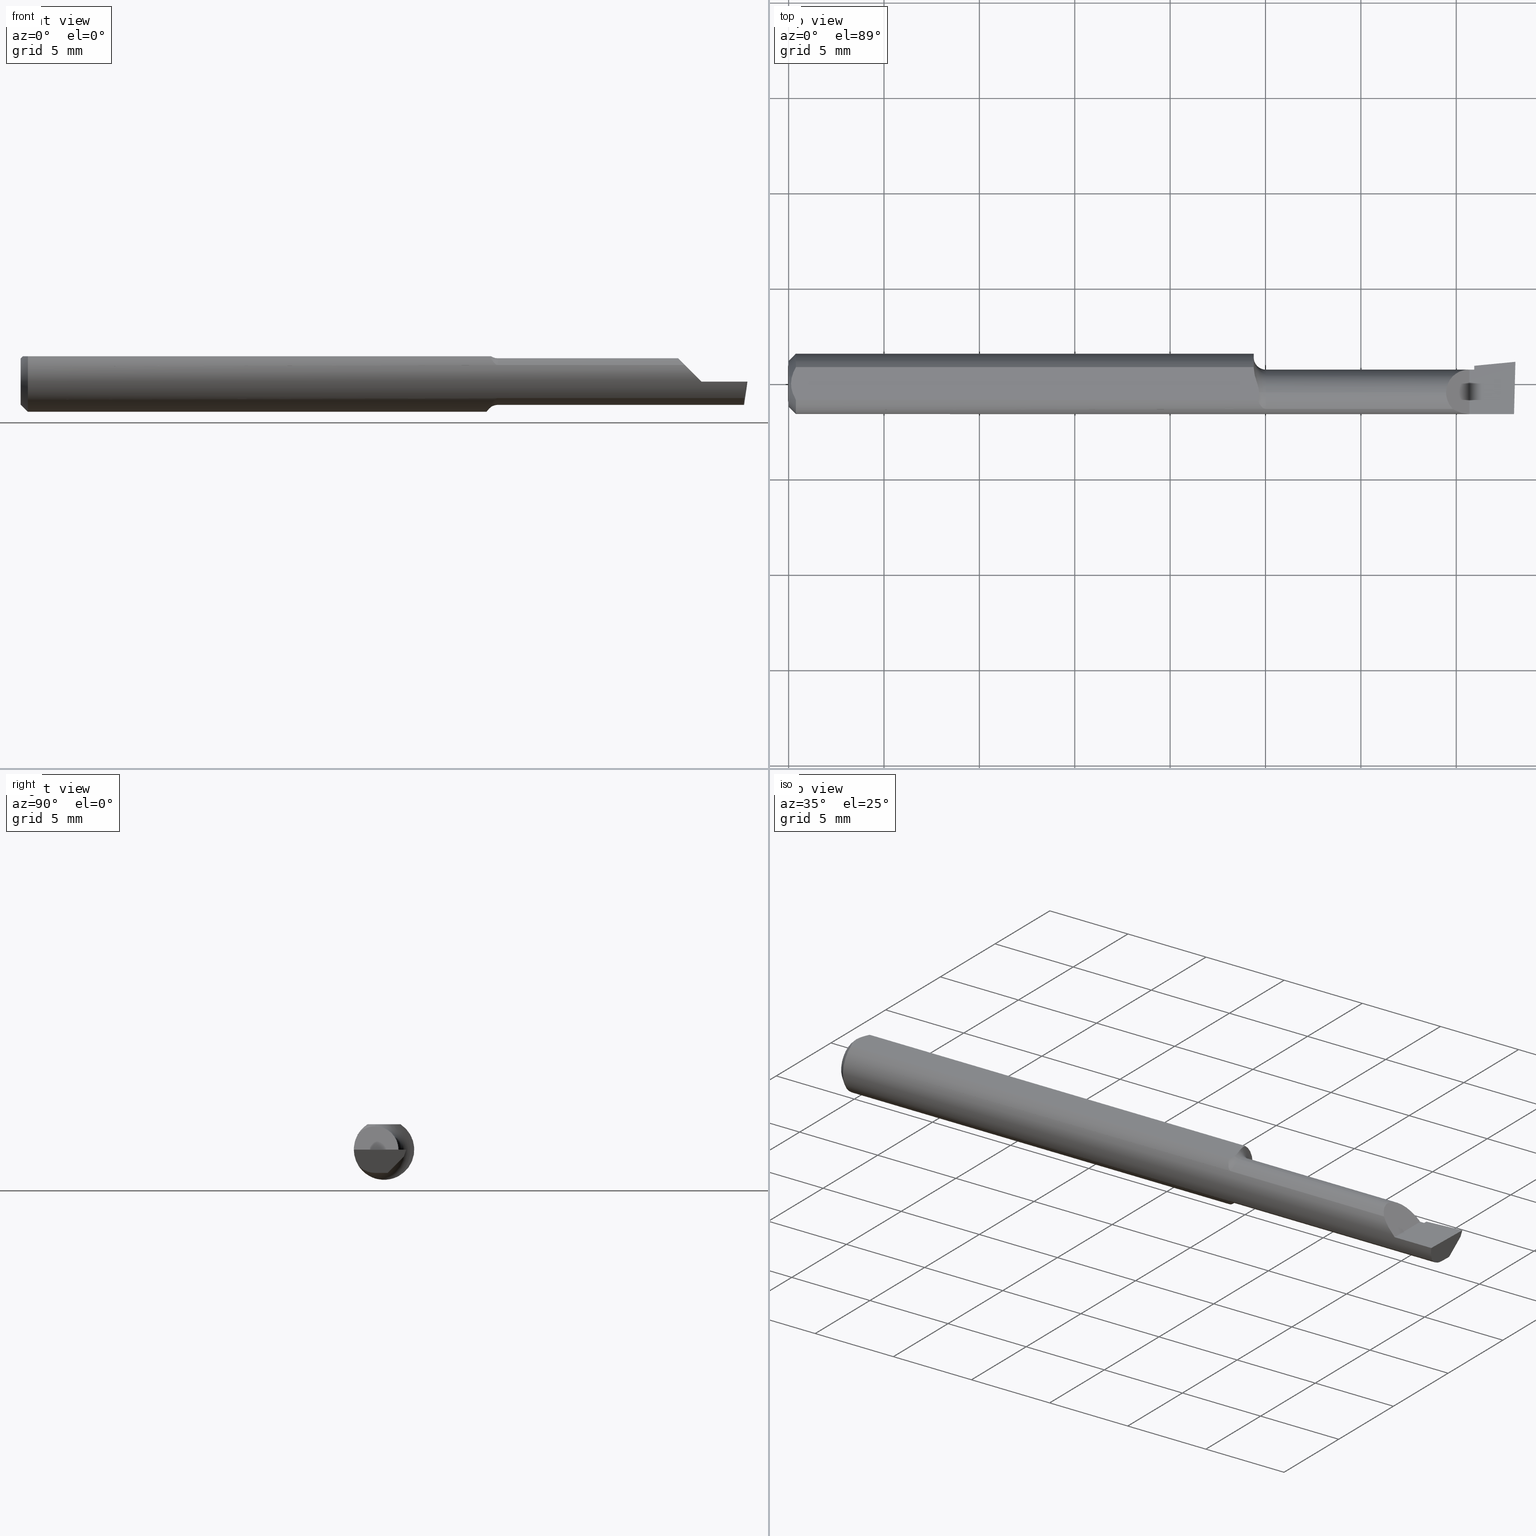
[diagram: canonical four-view strip — front | top / right | iso, engineering-drawing reading convention]
A machine part, canonical four-view strip (front | top / right | iso — engineering-drawing reading convention). The complete STEP part file that produces these views, byte-faithful:
ISO-10303-21;
HEADER;
FILE_DESCRIPTION (( 'STEP AP214' ),
    '1' );
FILE_NAME ('B110500.STEP',
    '2019-07-25T17:15:03',
    ( '' ),
    ( '' ),
    'SwSTEP 2.0',
    'SolidWorks 2018',
    '' );
FILE_SCHEMA (( 'AUTOMOTIVE_DESIGN' ));
ENDSEC;

DATA;
#1 = EDGE_LOOP ( 'NONE', ( #311, #715, #594, #349 ) ) ;
#2 = ORIENTED_EDGE ( 'NONE', *, *, #713, .F. ) ;
#3 = DIRECTION ( 'NONE',  ( -0.0000000000000000000, 0.0000000000000000000, 1.000000000000000000 ) ) ;
#4 = CARTESIAN_POINT ( 'NONE',  ( 0.9850000000000000977, -0.01839999999999999969, 0.04804999999999994692 ) ) ;
#5 = PLANE ( 'NONE',  #285 ) ;
#6 = EDGE_CURVE ( 'NONE', #321, #339, #693, .T. ) ;
#7 = VECTOR ( 'NONE', #372, 39.37007874015748143 ) ;
#8 = AXIS2_PLACEMENT_3D ( 'NONE', #80, #571, #630 ) ;
#9 = ORIENTED_EDGE ( 'NONE', *, *, #427, .F. ) ;
#10 = CARTESIAN_POINT ( 'NONE',  ( 1.493233423732482024, -0.05210000000000007681, -0.03425072991922935295 ) ) ;
#11 = ORIENTED_EDGE ( 'NONE', *, *, #140, .F. ) ;
#12 = DIRECTION ( 'NONE',  ( 0.0000000000000000000, 0.0000000000000000000, 1.000000000000000000 ) ) ;
#13 = EDGE_LOOP ( 'NONE', ( #290, #618, #704, #277, #217, #60 ) ) ;
#14 = DIRECTION ( 'NONE',  ( -0.9953961983671800740, -0.09584575252021031166, 0.0000000000000000000 ) ) ;
#15 = DIRECTION ( 'NONE',  ( 1.000000000000000000, 0.0000000000000000000, 0.0000000000000000000 ) ) ;
#16 = CARTESIAN_POINT ( 'NONE',  ( 0.9639435274990673097, -0.01839999999999995459, -0.05957316929625284391 ) ) ;
#17 = VECTOR ( 'NONE', #15, 39.37007874015748143 ) ;
#18 = CARTESIAN_POINT ( 'NONE',  ( 0.9656294582975117891, -0.02606820000987080180, -0.05677892429946721636 ) ) ;
#19 = VERTEX_POINT ( 'NONE', #25 ) ;
#20 = CARTESIAN_POINT ( 'NONE',  ( 1.405000000000000249, -0.06235000000000005121, 1.163414459189982046E-17 ) ) ;
#21 = CARTESIAN_POINT ( 'NONE',  ( 0.0000000000000000000, -0.03386738844375222768, 0.05234999999999997988 ) ) ;
#22 = CARTESIAN_POINT ( 'NONE',  ( 0.9850000000000000977, -0.05210000000000009068, 0.03425072991922929050 ) ) ;
#23 = DIRECTION ( 'NONE',  ( 0.0000000000000000000, 0.0000000000000000000, -1.000000000000000000 ) ) ;
#24 = FACE_OUTER_BOUND ( 'NONE', #540, .T. ) ;
#25 = CARTESIAN_POINT ( 'NONE',  ( 0.9709817975471366491, -0.01840000000000274055, 0.05235000000000000070 ) ) ;
#26 = CARTESIAN_POINT ( 'NONE',  ( 1.498384822753113355, 0.04264131821163496400, -0.01250862198832615631 ) ) ;
#27 = DIRECTION ( 'NONE',  ( 0.0000000000000000000, 0.0000000000000000000, -1.000000000000000000 ) ) ;
#28 = LENGTH_MEASURE_WITH_UNIT ( LENGTH_MEASURE( 0.02539999999999999897 ), #68 );
#29 = CARTESIAN_POINT ( 'NONE',  ( 0.9600000000000001865, 0.03254879782683781780, 0.05235000000000000070 ) ) ;
#30 = ORIENTED_EDGE ( 'NONE', *, *, #477, .T. ) ;
#31 = AXIS2_PLACEMENT_3D ( 'NONE', #457, #461, #410 ) ;
#32 = CARTESIAN_POINT ( 'NONE',  ( 1.493233423732482024, -0.05210000000000007681, -0.03425072991922935295 ) ) ;
#33 = ORIENTED_EDGE ( 'NONE', *, *, #229, .T. ) ;
#34 = DIRECTION ( 'NONE',  ( 0.0000000000000000000, 0.0000000000000000000, 1.000000000000000000 ) ) ;
#35 = LENGTH_MEASURE_WITH_UNIT ( LENGTH_MEASURE( 0.02539999999999999897 ), #308 );
#36 = CARTESIAN_POINT ( 'NONE',  ( 0.9678289663216181893, -0.001899322570691524366, 0.05235000000000000070 ) ) ;
#37 = LINE ( 'NONE', #109, #597 ) ;
#38 = CARTESIAN_POINT ( 'NONE',  ( 0.9681439896686973023, -0.03386738844377056717, 0.05235000000000000070 ) ) ;
#39 = ORIENTED_EDGE ( 'NONE', *, *, #181, .F. ) ;
#40 = VERTEX_POINT ( 'NONE', #197 ) ;
#41 = CARTESIAN_POINT ( 'NONE',  ( 0.9657332775895889343, 0.004426912553965690889, 0.05234999999999998682 ) ) ;
#42 = EDGE_CURVE ( 'NONE', #514, #227, #389, .T. ) ;
#43 = DIRECTION ( 'NONE',  ( 0.0000000000000000000, 1.000000000000000000, 0.0000000000000000000 ) ) ;
#44 = DIRECTION ( 'NONE',  ( -1.000000000000000000, -0.0000000000000000000, -0.0000000000000000000 ) ) ;
#45 = VERTEX_POINT ( 'NONE', #22 ) ;
#46 = EDGE_CURVE ( 'NONE', #382, #282, #299, .T. ) ;
#47 = EDGE_LOOP ( 'NONE', ( #33, #523, #2, #641, #628, #123, #600, #438 ) ) ;
#48 = EDGE_CURVE ( 'NONE', #428, #53, #257, .T. ) ;
#49 = CARTESIAN_POINT ( 'NONE',  ( 0.0000000000000000000, -0.01839999999999999275, -0.04804999999999997468 ) ) ;
#50 = FACE_OUTER_BOUND ( 'NONE', #169, .T. ) ;
#51 = LINE ( 'NONE', #463, #17 ) ;
#52 = ORIENTED_EDGE ( 'NONE', *, *, #401, .F. ) ;
#53 = VERTEX_POINT ( 'NONE', #676 ) ;
#54 = EDGE_CURVE ( 'NONE', #224, #629, #122, .T. ) ;
#55 = CARTESIAN_POINT ( 'NONE',  ( 0.01500000000000000465, 0.0000000000000000000, -0.06235000000000000264 ) ) ;
#56 = CARTESIAN_POINT ( 'NONE',  ( 1.405000000000000249, 0.02964999999999991601, 1.163414459189982046E-17 ) ) ;
#57 = VECTOR ( 'NONE', #466, 39.37007874015748854 ) ;
#58 = DIRECTION ( 'NONE',  ( -0.0000000000000000000, 1.000000000000000000, -0.0000000000000000000 ) ) ;
#59 = LINE ( 'NONE', #295, #336 ) ;
#60 = ORIENTED_EDGE ( 'NONE', *, *, #369, .F. ) ;
#61 = CARTESIAN_POINT ( 'NONE',  ( 0.9706711879428688849, -0.02367561104898163044, 0.05235000000000000070 ) ) ;
#62 = VERTEX_POINT ( 'NONE', #679 ) ;
#63 = ORIENTED_EDGE ( 'NONE', *, *, #6, .F. ) ;
#64 = ORIENTED_EDGE ( 'NONE', *, *, #578, .T. ) ;
#65 = AXIS2_PLACEMENT_3D ( 'NONE', #414, #636, #365 ) ;
#66 = CARTESIAN_POINT ( 'NONE',  ( 0.01218518006020415795, 0.02868529347538067639, 0.05235000000000000070 ) ) ;
#67 = CARTESIAN_POINT ( 'NONE',  ( 1.356949999999999878, -0.01839999999999999969, 0.04804999999999997468 ) ) ;
#68 =( LENGTH_UNIT ( ) NAMED_UNIT ( * ) SI_UNIT ( $, .METRE. ) );
#69 = DIRECTION ( 'NONE',  ( 0.0000000000000000000, 0.0000000000000000000, -1.000000000000000000 ) ) ;
#70 = FACE_OUTER_BOUND ( 'NONE', #1, .T. ) ;
#71 = AXIS2_PLACEMENT_3D ( 'NONE', #370, #373, #261 ) ;
#72 = CARTESIAN_POINT ( 'NONE',  ( 2.249639673992775738E-32, 0.02964999999999996458, 1.836970198721025250E-16 ) ) ;
#73 = EDGE_LOOP ( 'NONE', ( #327, #199, #75, #360, #9, #178 ) ) ;
#74 = DIRECTION ( 'NONE',  ( 0.0000000000000000000, 0.0000000000000000000, -1.000000000000000000 ) ) ;
#75 = ORIENTED_EDGE ( 'NONE', *, *, #525, .F. ) ;
#76 = DIRECTION ( 'NONE',  ( 0.02617694830787654220, 0.9996573249755572599, -3.158139334224213540E-18 ) ) ;
#77 = CARTESIAN_POINT ( 'NONE',  ( 0.9690023436943706603, -0.03635371779854203872, -0.05080473676934862959 ) ) ;
#78 = AXIS2_PLACEMENT_3D ( 'NONE', #478, #526, #586 ) ;
#79 = VECTOR ( 'NONE', #76, 39.37007874015748854 ) ;
#80 = CARTESIAN_POINT ( 'NONE',  ( 0.0000000000000000000, -0.01839999999999999969, 0.0000000000000000000 ) ) ;
#81 = PLANE ( 'NONE',  #83 ) ;
#82 = DIRECTION ( 'NONE',  ( -1.000000000000000000, 0.0000000000000000000, 1.224646799147350495E-16 ) ) ;
#83 = AXIS2_PLACEMENT_3D ( 'NONE', #460, #687, #69 ) ;
#84 = VERTEX_POINT ( 'NONE', #464 ) ;
#85 = PLANE ( 'NONE',  #682 ) ;
#86 = ADVANCED_FACE ( 'NONE', ( #104 ), #244, .F. ) ;
#87 = VERTEX_POINT ( 'NONE', #520 ) ;
#88 = CARTESIAN_POINT ( 'NONE',  ( 0.01500000000000185039, -0.03386738844380016850, 0.05235000000000000070 ) ) ;
#89 = EDGE_LOOP ( 'NONE', ( #156, #371, #508, #230 ) ) ;
#90 =( BOUNDED_CURVE ( )  B_SPLINE_CURVE ( 3, ( #20, #567, #136, #354 ),
 .UNSPECIFIED., .F., .F. ) 
 B_SPLINE_CURVE_WITH_KNOTS ( ( 4, 4 ),
 ( 4.712388980384689674, 5.293951277779025411 ),
 .UNSPECIFIED. ) 
 CURVE ( )  GEOMETRIC_REPRESENTATION_ITEM ( )  RATIONAL_B_SPLINE_CURVE ( ( 1.000000000000000000, 0.9720134746468970244, 0.9720134746468970244, 1.000000000000000000 ) ) 
 REPRESENTATION_ITEM ( '' )  );
#91 = EDGE_CURVE ( 'NONE', #289, #40, #90, .T. ) ;
#92 = ADVANCED_FACE ( 'NONE', ( #565 ), #585, .F. ) ;
#93 = APPLICATION_CONTEXT ( 'automotive_design' ) ;
#94 = CARTESIAN_POINT ( 'NONE',  ( 1.405000000000000249, -0.06235000000000005121, 1.163414459189982046E-17 ) ) ;
#95 = CARTESIAN_POINT ( 'NONE',  ( 1.498163195397632652, 0.04117310982593896940, -0.01399999999999999856 ) ) ;
#96 = ORIENTED_EDGE ( 'NONE', *, *, #447, .F. ) ;
#97 = SURFACE_SIDE_STYLE ('',( #379 ) ) ;
#98 = DIMENSIONAL_EXPONENTS ( 1.000000000000000000, 0.0000000000000000000, 0.0000000000000000000, 0.0000000000000000000, 0.0000000000000000000, 0.0000000000000000000, 0.0000000000000000000 ) ;
#99 = CARTESIAN_POINT ( 'NONE',  ( 1.495666027076596238, -0.06235000000000000958, -0.01226031473995683498 ) ) ;
#100 = CIRCLE ( 'NONE', #326, 0.04734999999999965625 ) ;
#101 = ORIENTED_EDGE ( 'NONE', *, *, #280, .T. ) ;
#102 = ORIENTED_EDGE ( 'NONE', *, *, #557, .F. ) ;
#103 = CIRCLE ( 'NONE', #384, 0.04804999999999994692 ) ;
#104 = FACE_OUTER_BOUND ( 'NONE', #392, .T. ) ;
#105 = EDGE_CURVE ( 'NONE', #62, #142, #424, .T. ) ;
#106 = ORIENTED_EDGE ( 'NONE', *, *, #329, .T. ) ;
#107 = MECHANICAL_DESIGN_GEOMETRIC_PRESENTATION_REPRESENTATION (  '', ( #222 ), #684 ) ;
#108 = CARTESIAN_POINT ( 'NONE',  ( 0.01216137397042175820, -0.02864146636719541034, 0.05235000000000000070 ) ) ;
#109 = CARTESIAN_POINT ( 'NONE',  ( 1.405000000000000249, -0.2500000000000000555, 1.163414459189982046E-17 ) ) ;
#110 = CARTESIAN_POINT ( 'NONE',  ( 1.415000000000000036, 0.02964999999999999927, 1.836970198721026483E-16 ) ) ;
#111 = CARTESIAN_POINT ( 'NONE',  ( 1.356949999999999878, -0.01839999999999999969, 0.04804999999999997468 ) ) ;
#112 = ORIENTED_EDGE ( 'NONE', *, *, #569, .F. ) ;
#113 = VERTEX_POINT ( 'NONE', #669 ) ;
#114 = CARTESIAN_POINT ( 'NONE',  ( 0.9709817975474690499, -0.02106709414031691582, 0.05235000000000000070 ) ) ;
#115 = ORIENTED_EDGE ( 'NONE', *, *, #128, .F. ) ;
#116 =( GEOMETRIC_REPRESENTATION_CONTEXT ( 3 ) GLOBAL_UNCERTAINTY_ASSIGNED_CONTEXT ( ( #596 ) ) GLOBAL_UNIT_ASSIGNED_CONTEXT ( ( #232, #440, #121 ) ) REPRESENTATION_CONTEXT ( 'NONE', 'WORKASPACE' ) );
#117 = CARTESIAN_POINT ( 'NONE',  ( 1.492371467082626468, -0.04299473640227069460, -0.04320958667840189144 ) ) ;
#118 = CARTESIAN_POINT ( 'NONE',  ( 0.9600000000000001865, -0.01839999999999999969, 0.0000000000000000000 ) ) ;
#119 = EDGE_CURVE ( 'NONE', #339, #649, #403, .T. ) ;
#120 = PRODUCT_DEFINITION_FORMATION_WITH_SPECIFIED_SOURCE ( 'ANY', '', #170, .NOT_KNOWN. ) ;
#121 =( NAMED_UNIT ( * ) SI_UNIT ( $, .STERADIAN. ) SOLID_ANGLE_UNIT ( ) );
#122 = CIRCLE ( 'NONE', #562, 0.06235000000000000264 ) ;
#123 = ORIENTED_EDGE ( 'NONE', *, *, #592, .T. ) ;
#124 = EDGE_LOOP ( 'NONE', ( #135, #378, #274, #433 ) ) ;
#125 = CARTESIAN_POINT ( 'NONE',  ( 0.0000000000000000000, 6.717187693324806899E-18, 0.04734999999999965625 ) ) ;
#126 = CYLINDRICAL_SURFACE ( 'NONE', #8, 0.04804999999999997468 ) ;
#127 = CARTESIAN_POINT ( 'NONE',  ( 0.9768557543361661155, -0.04856891343705597303, -0.03913748562448250701 ) ) ;
#128 = EDGE_CURVE ( 'NONE', #40, #62, #568, .T. ) ;
#129 = CARTESIAN_POINT ( 'NONE',  ( 0.01500000000000000465, 0.0000000000000000000, 0.0000000000000000000 ) ) ;
#130 = FACE_OUTER_BOUND ( 'NONE', #13, .T. ) ;
#131 = DIRECTION ( 'NONE',  ( -0.7071067811865516806, 0.0000000000000000000, 0.7071067811865431318 ) ) ;
#132 = CARTESIAN_POINT ( 'NONE',  ( 0.0000000000000000000, 0.0000000000000000000, 0.0000000000000000000 ) ) ;
#133 = VERTEX_POINT ( 'NONE', #442 ) ;
#134 = CARTESIAN_POINT ( 'NONE',  ( 1.500000000000000222, -0.01839999999999999969, -0.04804999999999998855 ) ) ;
#135 = ORIENTED_EDGE ( 'NONE', *, *, #202, .F. ) ;
#136 = CARTESIAN_POINT ( 'NONE',  ( 1.380994055934046782, -0.05883495956508443675, 0.02400594406595336905 ) ) ;
#137 = CARTESIAN_POINT ( 'NONE',  ( 0.9719606783407127581, -0.04239780856895213057, -0.04588180363204267392 ) ) ;
#138 = CARTESIAN_POINT ( 'NONE',  ( 0.9623860608652277104, -0.01052139226165770339, -0.06200658662318050268 ) ) ;
#139 = APPLICATION_PROTOCOL_DEFINITION ( 'draft international standard', 'automotive_design', 1998, #93 ) ;
#140 = EDGE_CURVE ( 'NONE', #417, #224, #530, .T. ) ;
#141 = VECTOR ( 'NONE', #450, 39.37007874015748854 ) ;
#142 = VERTEX_POINT ( 'NONE', #337 ) ;
#143 = ADVANCED_FACE ( 'NONE', ( #153 ), #347, .F. ) ;
#144 = DIRECTION ( 'NONE',  ( -1.000000000000000000, -0.0000000000000000000, -0.0000000000000000000 ) ) ;
#145 = VECTOR ( 'NONE', #518, 39.37007874015748143 ) ;
#146 = DIRECTION ( 'NONE',  ( -1.000000000000000000, 0.0000000000000000000, -0.0000000000000000000 ) ) ;
#147 = EDGE_CURVE ( 'NONE', #340, #426, #268, .T. ) ;
#148 =( CONVERSION_BASED_UNIT ( 'INCH', #35 ) LENGTH_UNIT ( ) NAMED_UNIT ( #98 ) );
#149 = UNCERTAINTY_MEASURE_WITH_UNIT (LENGTH_MEASURE( 1.000000000000000082E-05 ), #362, 'distance_accuracy_value', 'NONE');
#150 = ADVANCED_FACE ( 'NONE', ( #249 ), #519, .T. ) ;
#151 = VECTOR ( 'NONE', #324, 39.37007874015748143 ) ;
#152 = PRODUCT_CONTEXT ( 'NONE', #532, 'mechanical' ) ;
#153 = FACE_OUTER_BOUND ( 'NONE', #454, .T. ) ;
#154 = CARTESIAN_POINT ( 'NONE',  ( 2.249639673992775738E-32, -0.06234999999999999570, 1.836970198721025250E-16 ) ) ;
#155 = ORIENTED_EDGE ( 'NONE', *, *, #572, .T. ) ;
#156 = ORIENTED_EDGE ( 'NONE', *, *, #459, .T. ) ;
#157 = PLANE ( 'NONE',  #421 ) ;
#158 = PRODUCT_DEFINITION_CONTEXT ( 'detailed design', #93, 'design' ) ;
#159 = LINE ( 'NONE', #72, #375 ) ;
#160 = EDGE_CURVE ( 'NONE', #45, #40, #51, .T. ) ;
#161 = EDGE_LOOP ( 'NONE', ( #101, #455, #186 ) ) ;
#162 = AXIS2_PLACEMENT_3D ( 'NONE', #242, #615, #296 ) ;
#163 = ORIENTED_EDGE ( 'NONE', *, *, #322, .T. ) ;
#164 = AXIS2_PLACEMENT_3D ( 'NONE', #561, #195, #627 ) ;
#165 = DIRECTION ( 'NONE',  ( 0.0000000000000000000, -0.6963153109074925462, -0.7177360153954948085 ) ) ;
#166 = FACE_OUTER_BOUND ( 'NONE', #331, .T. ) ;
#167 = VECTOR ( 'NONE', #451, 39.37007874015748143 ) ;
#168 = CARTESIAN_POINT ( 'NONE',  ( 0.9766024100878112346, -0.04843664215652592614, 0.03931692004732156853 ) ) ;
#169 = EDGE_LOOP ( 'NONE', ( #218, #276, #515, #391, #446, #405, #434, #357, #11, #310, #251, #260, #39 ) ) ;
#170 = PRODUCT ( 'B110500', 'B110500', '', ( #152 ) ) ;
#171 = CARTESIAN_POINT ( 'NONE',  ( 1.492086480543131755, -0.03117368152160948994, -0.04804999999999997468 ) ) ;
#172 = AXIS2_PLACEMENT_3D ( 'NONE', #174, #509, #3 ) ;
#173 = DIRECTION ( 'NONE',  ( -0.9922060308645477278, 0.02598182930469667903, 0.1218693434051483088 ) ) ;
#174 = CARTESIAN_POINT ( 'NONE',  ( 1.415000000000000036, 0.03746543090320910568, 0.0000000000000000000 ) ) ;
#175 = UNCERTAINTY_MEASURE_WITH_UNIT (LENGTH_MEASURE( 1.000000000000000082E-05 ), #148, 'distance_accuracy_value', 'NONE');
#176 = ORIENTED_EDGE ( 'NONE', *, *, #511, .T. ) ;
#177 = AXIS2_PLACEMENT_3D ( 'NONE', #634, #467, #692 ) ;
#178 = ORIENTED_EDGE ( 'NONE', *, *, #501, .F. ) ;
#179 = CARTESIAN_POINT ( 'NONE',  ( 0.004999999999999268051, 0.005945714695019511074, 0.05235000000000000070 ) ) ;
#180 = B_SPLINE_CURVE_WITH_KNOTS ( 'NONE', 3,
 ( #588, #108, #376, #602, #283, #334 ),
 .UNSPECIFIED., .F., .F.,
 ( 4, 2, 4 ),
 ( 0.002133667072902290657, 0.002585433046183636171, 0.003037199019464981685 ),
 .UNSPECIFIED. ) ;
#181 = EDGE_CURVE ( 'NONE', #53, #469, #606, .T. ) ;
#182 = ADVANCED_FACE ( 'NONE', ( #166 ), #381, .T. ) ;
#183 = SURFACE_STYLE_FILL_AREA ( #335 ) ;
#184 = CARTESIAN_POINT ( 'NONE',  ( 1.492263437268387616, -0.2497974109750948912, 9.474556785672138714E-19 ) ) ;
#185 = VERTEX_POINT ( 'NONE', #570 ) ;
#186 = ORIENTED_EDGE ( 'NONE', *, *, #119, .T. ) ;
#187 = DIRECTION ( 'NONE',  ( -1.000000000000000000, -0.0000000000000000000, -0.0000000000000000000 ) ) ;
#188 = DIRECTION ( 'NONE',  ( 1.000000000000000000, 0.0000000000000000000, 0.0000000000000000000 ) ) ;
#189 =( GEOMETRIC_REPRESENTATION_CONTEXT ( 3 ) GLOBAL_UNCERTAINTY_ASSIGNED_CONTEXT ( ( #175 ) ) GLOBAL_UNIT_ASSIGNED_CONTEXT ( ( #148, #694, #642 ) ) REPRESENTATION_CONTEXT ( 'NONE', 'WORKASPACE' ) );
#190 = DIRECTION ( 'NONE',  ( -0.02617694830787654220, -0.9996573249755572599, 4.246274422243600449E-17 ) ) ;
#191 = CIRCLE ( 'NONE', #162, 0.04804999999999997468 ) ;
#192 = LINE ( 'NONE', #26, #386 ) ;
#193 = DIRECTION ( 'NONE',  ( -1.000000000000000000, -0.0000000000000000000, -0.0000000000000000000 ) ) ;
#194 = CARTESIAN_POINT ( 'NONE',  ( 0.9599999999999999645, 0.02282614954852000763, -0.05862499217990970596 ) ) ;
#195 = DIRECTION ( 'NONE',  ( -1.000000000000000000, -0.0000000000000000000, -0.0000000000000000000 ) ) ;
#196 = FACE_OUTER_BOUND ( 'NONE', #652, .T. ) ;
#197 = CARTESIAN_POINT ( 'NONE',  ( 1.370749270080770632, -0.05210000000000013232, 0.03425072991922928356 ) ) ;
#198 = CARTESIAN_POINT ( 'NONE',  ( 0.9600000000000001865, 0.03016902173913024385, -0.05456512281030700268 ) ) ;
#199 = ORIENTED_EDGE ( 'NONE', *, *, #147, .T. ) ;
#200 = CARTESIAN_POINT ( 'NONE',  ( 1.415000000000000036, 0.03746543090320910568, 0.0000000000000000000 ) ) ;
#201 = ORIENTED_EDGE ( 'NONE', *, *, #617, .T. ) ;
#202 = EDGE_CURVE ( 'NONE', #706, #133, #593, .T. ) ;
#203 = CARTESIAN_POINT ( 'NONE',  ( 1.415000000000000036, 0.02286474879319036826, -0.02461753454420024384 ) ) ;
#204 = ADVANCED_FACE ( 'NONE', ( #626 ), #81, .F. ) ;
#205 = FILL_AREA_STYLE ('',( #638 ) ) ;
#206 = DIRECTION ( 'NONE',  ( -0.0000000000000000000, 0.0000000000000000000, 1.000000000000000000 ) ) ;
#207 = VECTOR ( 'NONE', #505, 39.37007874015748143 ) ;
#208 = ADVANCED_FACE ( 'NONE', ( #70 ), #85, .F. ) ;
#209 =( NAMED_UNIT ( * ) PLANE_ANGLE_UNIT ( ) SI_UNIT ( $, .RADIAN. ) );
#210 = VECTOR ( 'NONE', #43, 39.37007874015748143 ) ;
#211 = CARTESIAN_POINT ( 'NONE',  ( 1.415000000000000036, 0.03394043341024433752, -0.01147666661066421880 ) ) ;
#212 = VERTEX_POINT ( 'NONE', #243 ) ;
#213 = CARTESIAN_POINT ( 'NONE',  ( 1.510364203804933414, 0.04234793331252795917, -0.01399999999999999856 ) ) ;
#214 = DIRECTION ( 'NONE',  ( 0.0000000000000000000, 0.0000000000000000000, 1.000000000000000000 ) ) ;
#215 = VECTOR ( 'NONE', #350, 39.37007874015748143 ) ;
#216 = CARTESIAN_POINT ( 'NONE',  ( 0.9850000000000000977, -0.01839999999999999275, -0.04804999999999994692 ) ) ;
#217 = ORIENTED_EDGE ( 'NONE', *, *, #667, .F. ) ;
#218 = ORIENTED_EDGE ( 'NONE', *, *, #511, .F. ) ;
#219 = ORIENTED_EDGE ( 'NONE', *, *, #42, .F. ) ;
#220 = STYLED_ITEM ( 'NONE', ( #297 ), #491 ) ;
#221 = EDGE_CURVE ( 'NONE', #340, #113, #613, .T. ) ;
#222 = STYLED_ITEM ( 'NONE', ( #286 ), #662 ) ;
#223 = CARTESIAN_POINT ( 'NONE',  ( 0.0000000000000000000, 0.0000000000000000000, 0.0000000000000000000 ) ) ;
#224 = VERTEX_POINT ( 'NONE', #317 ) ;
#225 = DIRECTION ( 'NONE',  ( 0.0000000000000000000, 0.2936076258024064023, 0.9559260233253795702 ) ) ;
#226 = CARTESIAN_POINT ( 'NONE',  ( 1.356949999999999656, 0.009747038327972766536, 0.04804999999999997468 ) ) ;
#227 = VERTEX_POINT ( 'NONE', #258 ) ;
#228 = DIRECTION ( 'NONE',  ( -1.000000000000000000, -0.0000000000000000000, -0.0000000000000000000 ) ) ;
#229 = EDGE_CURVE ( 'NONE', #587, #231, #665, .T. ) ;
#230 = ORIENTED_EDGE ( 'NONE', *, *, #46, .F. ) ;
#231 = VERTEX_POINT ( 'NONE', #304 ) ;
#232 =( CONVERSION_BASED_UNIT ( 'INCH', #28 ) LENGTH_UNIT ( ) NAMED_UNIT ( #481 ) );
#233 = DIRECTION ( 'NONE',  ( -1.000000000000000000, -0.0000000000000000000, -0.0000000000000000000 ) ) ;
#234 = CARTESIAN_POINT ( 'NONE',  ( 0.9681439896686973023, -0.03386738844377056717, 0.05235000000000000070 ) ) ;
#235 = DIRECTION ( 'NONE',  ( -1.000000000000000000, -0.0000000000000000000, -0.0000000000000000000 ) ) ;
#236 = SURFACE_SIDE_STYLE ('',( #183 ) ) ;
#237 = CARTESIAN_POINT ( 'NONE',  ( 1.356949999999999656, -0.03117368152160952810, 0.04804999999999997468 ) ) ;
#238 = LINE ( 'NONE', #436, #512 ) ;
#239 = CARTESIAN_POINT ( 'NONE',  ( 0.9600000000000001865, 0.1123499999999999915, 0.05234999999999998682 ) ) ;
#240 = CARTESIAN_POINT ( 'NONE',  ( 1.415000000000000036, 0.01335851473338077466, -0.03441620828959359585 ) ) ;
#241 = DIRECTION ( 'NONE',  ( 2.429359850419095176E-34, 4.268512490100411895E-17, 1.000000000000000000 ) ) ;
#242 = CARTESIAN_POINT ( 'NONE',  ( 1.415000000000000036, -0.01839999999999999969, 0.0000000000000000000 ) ) ;
#243 = CARTESIAN_POINT ( 'NONE',  ( 1.415000000000000036, 0.03746543090321034775, 1.899488058094682973E-16 ) ) ;
#244 = PLANE ( 'NONE',  #603 ) ;
#245 = DIRECTION ( 'NONE',  ( 1.000000000000000000, 0.0000000000000000000, 0.0000000000000000000 ) ) ;
#246 = FACE_OUTER_BOUND ( 'NONE', #616, .T. ) ;
#247 = LINE ( 'NONE', #240, #344 ) ;
#248 = CARTESIAN_POINT ( 'NONE',  ( 0.9850000000000000977, -0.01839999999999999969, 0.07304999999999996219 ) ) ;
#249 = FACE_OUTER_BOUND ( 'NONE', #161, .T. ) ;
#250 = CARTESIAN_POINT ( 'NONE',  ( 0.9810018602471947124, -0.05138041438525052518, -0.03535223831097217967 ) ) ;
#251 = ORIENTED_EDGE ( 'NONE', *, *, #280, .F. ) ;
#252 = CARTESIAN_POINT ( 'NONE',  ( 1.415000000000000036, 0.01335851473338077466, -0.03441620828959359585 ) ) ;
#253 = CARTESIAN_POINT ( 'NONE',  ( 0.01500000000000000465, 7.635672792683746671E-18, 0.06235000000000000264 ) ) ;
#254 = DIRECTION ( 'NONE',  ( 0.0000000000000000000, -8.537024980200821325E-17, 1.000000000000000000 ) ) ;
#255 = AXIS2_PLACEMENT_3D ( 'NONE', #118, #228, #445 ) ;
#256 = VECTOR ( 'NONE', #537, 39.37007874015748143 ) ;
#257 = CIRCLE ( 'NONE', #31, 0.04804999999999994692 ) ;
#258 = CARTESIAN_POINT ( 'NONE',  ( 0.004999999999989931769, 7.898418181085889318E-16, 0.05235000000000000070 ) ) ;
#259 = ADVANCED_FACE ( 'NONE', ( #702 ), #475, .T. ) ;
#260 = ORIENTED_EDGE ( 'NONE', *, *, #631, .F. ) ;
#261 = DIRECTION ( 'NONE',  ( 0.0000000000000000000, 0.0000000000000000000, -1.000000000000000000 ) ) ;
#262 = CARTESIAN_POINT ( 'NONE',  ( 1.415000000000000036, -0.01839999999999999969, 0.0000000000000000000 ) ) ;
#263 = CARTESIAN_POINT ( 'NONE',  ( 0.9681439896686973023, -0.03386738844377056717, 0.05235000000000000070 ) ) ;
#264 = DIRECTION ( 'NONE',  ( 0.0000000000000000000, 0.0000000000000000000, 1.000000000000000000 ) ) ;
#265 = CARTESIAN_POINT ( 'NONE',  ( 0.9623037607715416719, 0.01498942864105881276, 0.05235000000000000764 ) ) ;
#266 = CARTESIAN_POINT ( 'NONE',  ( 0.9639435274990673097, -0.01839999999999995459, -0.05957316929625284391 ) ) ;
#267 = ADVANCED_FACE ( 'NONE', ( #691 ), #309, .T. ) ;
#268 = LINE ( 'NONE', #404, #494 ) ;
#269 = ORIENTED_EDGE ( 'NONE', *, *, #119, .F. ) ;
#270 = CARTESIAN_POINT ( 'NONE',  ( 0.9836283801985743480, -0.05210000000115980190, 0.03425072991746576367 ) ) ;
#271 = LINE ( 'NONE', #287, #435 ) ;
#272 = PRODUCT_DEFINITION ( 'UNKNOWN', '', #120, #158 ) ;
#273 = VECTOR ( 'NONE', #548, 39.37007874015748143 ) ;
#274 = ORIENTED_EDGE ( 'NONE', *, *, #328, .F. ) ;
#275 = B_SPLINE_CURVE_WITH_KNOTS ( 'NONE', 3,
 ( #300, #138, #677, #622, #194, #198 ),
 .UNSPECIFIED., .F., .F.,
 ( 4, 2, 4 ),
 ( 0.001277683611626133364, 0.001926233481642344782, 0.002574783351658556201 ),
 .UNSPECIFIED. ) ;
#276 = ORIENTED_EDGE ( 'NONE', *, *, #369, .T. ) ;
#277 = ORIENTED_EDGE ( 'NONE', *, *, #202, .T. ) ;
#278 = AXIS2_PLACEMENT_3D ( 'NONE', #319, #584, #27 ) ;
#279 = CARTESIAN_POINT ( 'NONE',  ( 1.494315395341277553, -0.05883495956508440899, -0.02400594406595344885 ) ) ;
#280 = EDGE_CURVE ( 'NONE', #649, #321, #493, .T. ) ;
#281 = ORIENTED_EDGE ( 'NONE', *, *, #229, .F. ) ;
#282 = VERTEX_POINT ( 'NONE', #203 ) ;
#283 = CARTESIAN_POINT ( 'NONE',  ( 0.004999999999998879473, -0.005957634400466955450, 0.05235000000000000070 ) ) ;
#284 = ORIENTED_EDGE ( 'NONE', *, *, #465, .T. ) ;
#285 = AXIS2_PLACEMENT_3D ( 'NONE', #510, #664, #551 ) ;
#286 = PRESENTATION_STYLE_ASSIGNMENT (( #316 ) ) ;
#287 = CARTESIAN_POINT ( 'NONE',  ( 0.8348153170171558335, -0.01839999999999999969, 8.146162928567849885E-17 ) ) ;
#288 = CARTESIAN_POINT ( 'NONE',  ( 1.361790413321597892, -0.04299473640227075705, 0.04320958667840187062 ) ) ;
#289 = VERTEX_POINT ( 'NONE', #94 ) ;
#290 = ORIENTED_EDGE ( 'NONE', *, *, #507, .T. ) ;
#291 = CARTESIAN_POINT ( 'NONE',  ( 1.199999999999999956, -0.05210000000000007681, -0.03425072991922935295 ) ) ;
#292 = LINE ( 'NONE', #21, #601 ) ;
#293 = B_SPLINE_CURVE_WITH_KNOTS ( 'NONE', 3,
 ( #703, #114, #61, #502, #555, #234 ),
 .UNSPECIFIED., .F., .F.,
 ( 4, 2, 4 ),
 ( 0.0004198066361325438834, 0.0006196367099741922988, 0.0008194667838158406058 ),
 .UNSPECIFIED. ) ;
#294 = ADVANCED_FACE ( 'NONE', ( #543 ), #413, .F. ) ;
#295 = CARTESIAN_POINT ( 'NONE',  ( 1.510364203804933414, 0.04234793331252795917, -0.01399999999999999856 ) ) ;
#296 = DIRECTION ( 'NONE',  ( 0.0000000000000000000, 0.0000000000000000000, 1.000000000000000000 ) ) ;
#297 = PRESENTATION_STYLE_ASSIGNMENT (( #608 ) ) ;
#298 = CARTESIAN_POINT ( 'NONE',  ( 1.405000000000000249, -0.2500000000000000555, 1.163414459189982046E-17 ) ) ;
#299 = CIRCLE ( 'NONE', #552, 0.04805000000000000243 ) ;
#300 = CARTESIAN_POINT ( 'NONE',  ( 0.9639435274990673097, -0.01839999999999995459, -0.05957316929625284391 ) ) ;
#301 = ORIENTED_EDGE ( 'NONE', *, *, #431, .F. ) ;
#302 = DIRECTION ( 'NONE',  ( 0.0000000000000000000, -1.000000000000000000, 4.268512490100411895E-17 ) ) ;
#303 = DIRECTION ( 'NONE',  ( 0.0000000000000000000, 0.0000000000000000000, 1.000000000000000000 ) ) ;
#304 = CARTESIAN_POINT ( 'NONE',  ( 1.415000000000000036, -0.01839999999999999969, -0.04804999999999998855 ) ) ;
#305 = DIMENSIONAL_EXPONENTS ( 1.000000000000000000, 0.0000000000000000000, 0.0000000000000000000, 0.0000000000000000000, 0.0000000000000000000, 0.0000000000000000000, 0.0000000000000000000 ) ;
#306 = DIRECTION ( 'NONE',  ( 0.0000000000000000000, 0.0000000000000000000, 1.000000000000000000 ) ) ;
#307 = FACE_OUTER_BOUND ( 'NONE', #89, .T. ) ;
#308 =( LENGTH_UNIT ( ) NAMED_UNIT ( * ) SI_UNIT ( $, .METRE. ) );
#309 = CONICAL_SURFACE ( 'NONE', #278, 0.06235000000000000264, 0.7853981633974594923 ) ;
#310 = ORIENTED_EDGE ( 'NONE', *, *, #557, .T. ) ;
#311 = ORIENTED_EDGE ( 'NONE', *, *, #147, .F. ) ;
#312 =( NAMED_UNIT ( * ) SI_UNIT ( $, .STERADIAN. ) SOLID_ANGLE_UNIT ( ) );
#313 = ADVANCED_FACE ( 'NONE', ( #714 ), #479, .T. ) ;
#314 = CARTESIAN_POINT ( 'NONE',  ( 0.9664444859557655976, 0.002321921504987204624, 0.05235000000000000070 ) ) ;
#315 = DIRECTION ( 'NONE',  ( 0.0000000000000000000, 0.6963153109074924352, 0.7177360153954948085 ) ) ;
#316 = SURFACE_STYLE_USAGE ( .BOTH. , #97 ) ;
#317 = CARTESIAN_POINT ( 'NONE',  ( 0.01500000000000000465, 0.0000000000000000000, -0.06235000000000000264 ) ) ;
#318 = ORIENTED_EDGE ( 'NONE', *, *, #572, .F. ) ;
#319 = CARTESIAN_POINT ( 'NONE',  ( 0.01500000000000000465, 0.0000000000000000000, 0.0000000000000000000 ) ) ;
#320 = ORIENTED_EDGE ( 'NONE', *, *, #710, .F. ) ;
#321 = VERTEX_POINT ( 'NONE', #419 ) ;
#322 = EDGE_CURVE ( 'NONE', #62, #556, #563, .T. ) ;
#323 = PRESENTATION_LAYER_ASSIGNMENT (  '', '', ( #222 ) ) ;
#324 = DIRECTION ( 'NONE',  ( 0.7071067811865395791, 0.0000000000000000000, -0.7071067811865554553 ) ) ;
#325 = PLANE ( 'NONE',  #453 ) ;
#326 = AXIS2_PLACEMENT_3D ( 'NONE', #132, #673, #680 ) ;
#327 = ORIENTED_EDGE ( 'NONE', *, *, #609, .F. ) ;
#328 = EDGE_CURVE ( 'NONE', #212, #185, #574, .T. ) ;
#329 = EDGE_CURVE ( 'NONE', #671, #45, #498, .T. ) ;
#330 = LINE ( 'NONE', #55, #151 ) ;
#331 = EDGE_LOOP ( 'NONE', ( #377, #163, #52, #495 ) ) ;
#332 = CARTESIAN_POINT ( 'NONE',  ( 1.415000000000000036, 0.0001316211261978388330, -0.04804999999999998855 ) ) ;
#333 = ORIENTED_EDGE ( 'NONE', *, *, #447, .T. ) ;
#334 = CARTESIAN_POINT ( 'NONE',  ( 0.004999999999989931769, 7.898418181085889318E-16, 0.05235000000000000070 ) ) ;
#335 = FILL_AREA_STYLE ('',( #558 ) ) ;
#336 = VECTOR ( 'NONE', #14, 39.37007874015748854 ) ;
#337 = CARTESIAN_POINT ( 'NONE',  ( 1.405000000000000249, 0.02964999999999991601, 1.163414459189982046E-17 ) ) ;
#338 = AXIS2_PLACEMENT_3D ( 'NONE', #129, #623, #306 ) ;
#339 = VERTEX_POINT ( 'NONE', #430 ) ;
#340 = VERTEX_POINT ( 'NONE', #696 ) ;
#341 = DIRECTION ( 'NONE',  ( 0.0000000000000000000, -0.6963153109074925462, -0.7177360153954948085 ) ) ;
#342 = DIRECTION ( 'NONE',  ( 0.1219104985252837253, 0.0000000000000000000, 0.9925410975618675913 ) ) ;
#343 = B_SPLINE_CURVE_WITH_KNOTS ( 'NONE', 3,
 ( #29, #582, #265, #41, #314, #36, #473, #420, #536, #534 ),
 .UNSPECIFIED., .F., .F.,
 ( 4, 2, 2, 2, 4 ),
 ( 0.008710904206567280858, 0.009350419755586234644, 0.009510298642840973524, 0.009670177530095712404, 0.009989935304605188429 ),
 .UNSPECIFIED. ) ;
#344 = VECTOR ( 'NONE', #341, 39.37007874015748854 ) ;
#345 = VECTOR ( 'NONE', #646, 39.37007874015748143 ) ;
#346 = DIRECTION ( 'NONE',  ( 0.0000000000000000000, -1.000000000000000000, 0.0000000000000000000 ) ) ;
#347 = TOROIDAL_SURFACE ( 'NONE', #695, 0.07304999999999996219, 0.02500000000000000486 ) ;
#348 = CARTESIAN_POINT ( 'NONE',  ( 0.9647104858884212319, -0.02227973916747848573, -0.05837485801745211783 ) ) ;
#349 = ORIENTED_EDGE ( 'NONE', *, *, #655, .T. ) ;
#350 = DIRECTION ( 'NONE',  ( 0.0000000000000000000, 1.000000000000000000, -4.268512490100410663E-17 ) ) ;
#351 = CARTESIAN_POINT ( 'NONE',  ( 0.9677747305127012423, -0.03308328010062950436, -0.05299899880320899787 ) ) ;
#352 = CARTESIAN_POINT ( 'NONE',  ( 0.01500000000000000465, 0.0000000000000000000, 0.0000000000000000000 ) ) ;
#353 = DIRECTION ( 'NONE',  ( -0.0000000000000000000, 1.000000000000000000, 1.224646799147353207E-16 ) ) ;
#354 = CARTESIAN_POINT ( 'NONE',  ( 1.370749270080770632, -0.05210000000000013232, 0.03425072991922928356 ) ) ;
#355 = ORIENTED_EDGE ( 'NONE', *, *, #569, .T. ) ;
#356 = CARTESIAN_POINT ( 'NONE',  ( 1.415000000000000036, 0.007456147106387241673, -0.04050015008383130860 ) ) ;
#357 = ORIENTED_EDGE ( 'NONE', *, *, #54, .F. ) ;
#358 = DIRECTION ( 'NONE',  ( -0.06894566448119623936, 0.7160281025913035613, -0.6946583704589934793 ) ) ;
#359 = AXIS2_PLACEMENT_3D ( 'NONE', #458, #353, #254 ) ;
#360 = ORIENTED_EDGE ( 'NONE', *, *, #635, .F. ) ;
#361 = ORIENTED_EDGE ( 'NONE', *, *, #42, .T. ) ;
#362 =( CONVERSION_BASED_UNIT ( 'INCH', #645 ) LENGTH_UNIT ( ) NAMED_UNIT ( #305 ) );
#363 =( BOUNDED_CURVE ( )  B_SPLINE_CURVE ( 3, ( #32, #279, #99, #385 ),
 .UNSPECIFIED., .F., .T. ) 
 B_SPLINE_CURVE_WITH_KNOTS ( ( 4, 4 ),
 ( 0.7791845851203680340, 1.360746882514706213 ),
 .UNSPECIFIED. ) 
 CURVE ( )  GEOMETRIC_REPRESENTATION_ITEM ( )  RATIONAL_B_SPLINE_CURVE ( ( 1.000000000000000000, 0.9720134746468966913, 0.9720134746468966913, 1.000000000000000000 ) ) 
 REPRESENTATION_ITEM ( '' )  );
#364 = AXIS2_PLACEMENT_3D ( 'NONE', #406, #235, #12 ) ;
#365 = DIRECTION ( 'NONE',  ( 0.0000000000000000000, 1.000000000000000000, -7.598598113218357399E-17 ) ) ;
#366 = CIRCLE ( 'NONE', #359, 0.02500000000000000486 ) ;
#367 = LINE ( 'NONE', #546, #210 ) ;
#368 = ORIENTED_EDGE ( 'NONE', *, *, #617, .F. ) ;
#369 = EDGE_CURVE ( 'NONE', #84, #672, #363, .T. ) ;
#370 = CARTESIAN_POINT ( 'NONE',  ( 0.01500000000000000465, 0.0000000000000000000, 0.0000000000000000000 ) ) ;
#371 = ORIENTED_EDGE ( 'NONE', *, *, #328, .T. ) ;
#372 = DIRECTION ( 'NONE',  ( -1.000000000000000000, -0.0000000000000000000, -0.0000000000000000000 ) ) ;
#373 = DIRECTION ( 'NONE',  ( 1.000000000000000000, 0.0000000000000000000, 0.0000000000000000000 ) ) ;
#374 = ADVANCED_FACE ( 'NONE', ( #527 ), #157, .T. ) ;
#375 = VECTOR ( 'NONE', #245, 39.37007874015748143 ) ;
#376 = CARTESIAN_POINT ( 'NONE',  ( 0.009678036133109307534, -0.02325481837211496039, 0.05235000000000000070 ) ) ;
#377 = ORIENTED_EDGE ( 'NONE', *, *, #128, .T. ) ;
#378 = ORIENTED_EDGE ( 'NONE', *, *, #501, .T. ) ;
#379 = SURFACE_STYLE_FILL_AREA ( #205 ) ;
#380 = AXIS2_PLACEMENT_3D ( 'NONE', #418, #474, #34 ) ;
#381 = CYLINDRICAL_SURFACE ( 'NONE', #164, 0.04804999999999997468 ) ;
#382 = VERTEX_POINT ( 'NONE', #110 ) ;
#383 = DIRECTION ( 'NONE',  ( -0.09165774897393340337, 0.9519021185660613282, -0.2923717047227306631 ) ) ;
#384 = AXIS2_PLACEMENT_3D ( 'NONE', #425, #387, #657 ) ;
#385 = CARTESIAN_POINT ( 'NONE',  ( 1.497171920470529161, -0.06235000000000005121, 3.552677088412748576E-19 ) ) ;
#386 = VECTOR ( 'NONE', #564, 39.37007874015748854 ) ;
#387 = DIRECTION ( 'NONE',  ( -1.000000000000000000, -0.0000000000000000000, -0.0000000000000000000 ) ) ;
#388 = CARTESIAN_POINT ( 'NONE',  ( 1.376852961672026865, 0.02964999999999997499, 0.02814703832797277316 ) ) ;
#389 = LINE ( 'NONE', #253, #397 ) ;
#390 = DIRECTION ( 'NONE',  ( 0.9953961983671787417, 0.09584575252022461966, -1.219008768213806398E-16 ) ) ;
#391 = ORIENTED_EDGE ( 'NONE', *, *, #91, .T. ) ;
#392 = EDGE_LOOP ( 'NONE', ( #115, #575, #30, #470 ) ) ;
#393 = CARTESIAN_POINT ( 'NONE',  ( 0.009669996313769784607, 0.02323004575534281385, 0.05234999999999998682 ) ) ;
#394 = EDGE_CURVE ( 'NONE', #231, #428, #415, .T. ) ;
#395 = CARTESIAN_POINT ( 'NONE',  ( 1.492420971165606458, -0.01839999999999999969, -0.04804999999999998855 ) ) ;
#396 = VECTOR ( 'NONE', #580, 39.37007874015748143 ) ;
#397 = VECTOR ( 'NONE', #624, 39.37007874015748143 ) ;
#398 = CARTESIAN_POINT ( 'NONE',  ( 0.004999999999989931769, 7.898418181085889318E-16, 0.05235000000000000070 ) ) ;
#399 = ORIENTED_EDGE ( 'NONE', *, *, #48, .F. ) ;
#400 = CARTESIAN_POINT ( 'NONE',  ( 0.9600000000000001865, 0.03016902173913024385, -0.05456512281030700268 ) ) ;
#401 = EDGE_CURVE ( 'NONE', #45, #556, #103, .T. ) ;
#402 = DIRECTION ( 'NONE',  ( -0.7071067811865432429, 0.0000000000000000000, -0.7071067811865517916 ) ) ;
#403 = CIRCLE ( 'NONE', #255, 0.07304999999999996219 ) ;
#404 = CARTESIAN_POINT ( 'NONE',  ( 1.497451155291632086, 0.008070764392015403882, -0.04804999999999998855 ) ) ;
#405 = ORIENTED_EDGE ( 'NONE', *, *, #329, .F. ) ;
#406 = CARTESIAN_POINT ( 'NONE',  ( 0.9850000000000000977, -0.01839999999999999969, 0.0000000000000000000 ) ) ;
#407 = ORIENTED_EDGE ( 'NONE', *, *, #140, .T. ) ;
#408 = CARTESIAN_POINT ( 'NONE',  ( 1.500000000000000222, -0.2500000000000000555, 0.0000000000000000000 ) ) ;
#409 = CARTESIAN_POINT ( 'NONE',  ( 0.9736313994831701235, -0.04510599191766692662, -0.04319271381807381766 ) ) ;
#410 = DIRECTION ( 'NONE',  ( 0.0000000000000000000, 0.0000000000000000000, 1.000000000000000000 ) ) ;
#411 = DIRECTION ( 'NONE',  ( -1.224646799147350495E-16, 0.0000000000000000000, -1.000000000000000000 ) ) ;
#412 = AXIS2_PLACEMENT_3D ( 'NONE', #262, #644, #264 ) ;
#413 = PLANE ( 'NONE',  #65 ) ;
#414 = CARTESIAN_POINT ( 'NONE',  ( 1.500000000000000222, 0.1123499999999999915, 0.05234999999999998682 ) ) ;
#415 = LINE ( 'NONE', #49, #256 ) ;
#416 = DIRECTION ( 'NONE',  ( 1.000000000000000000, 0.0000000000000000000, 0.0000000000000000000 ) ) ;
#417 = VERTEX_POINT ( 'NONE', #485 ) ;
#418 = CARTESIAN_POINT ( 'NONE',  ( 0.9850000000000000977, -0.01839999999999999969, 0.0000000000000000000 ) ) ;
#419 = CARTESIAN_POINT ( 'NONE',  ( 0.9600000000000001865, 0.03386738844375224156, 0.05235000000000000070 ) ) ;
#420 = CARTESIAN_POINT ( 'NONE',  ( 0.9701689947020403215, -0.01001121285792180154, 0.05235000000000001458 ) ) ;
#421 = AXIS2_PLACEMENT_3D ( 'NONE', #500, #383, #225 ) ;
#422 = CARTESIAN_POINT ( 'NONE',  ( 0.9697417421283762717, -0.03819491529868387220, 0.04955034320923033808 ) ) ;
#423 = LINE ( 'NONE', #291, #207 ) ;
#424 =( BOUNDED_CURVE ( )  B_SPLINE_CURVE ( 3, ( #67, #226, #388, #56 ),
 .UNSPECIFIED., .F., .T. ) 
 B_SPLINE_CURVE_WITH_KNOTS ( ( 4, 4 ),
 ( 0.0000000000000000000, 1.570796326794896558 ),
 .UNSPECIFIED. ) 
 CURVE ( )  GEOMETRIC_REPRESENTATION_ITEM ( )  RATIONAL_B_SPLINE_CURVE ( ( 1.000000000000000000, 0.8047378541243649375, 0.8047378541243649375, 1.000000000000000000 ) ) 
 REPRESENTATION_ITEM ( '' )  );
#425 = CARTESIAN_POINT ( 'NONE',  ( 0.9850000000000000977, -0.01839999999999999969, 0.0000000000000000000 ) ) ;
#426 = VERTEX_POINT ( 'NONE', #332 ) ;
#427 = EDGE_CURVE ( 'NONE', #185, #282, #238, .T. ) ;
#428 = VERTEX_POINT ( 'NONE', #216 ) ;
#429 = PRODUCT_RELATED_PRODUCT_CATEGORY ( 'part', '', ( #170 ) ) ;
#430 = CARTESIAN_POINT ( 'NONE',  ( 0.9600000000000001865, 0.03254879782683781780, 0.05235000000000000070 ) ) ;
#431 = EDGE_CURVE ( 'NONE', #113, #231, #707, .T. ) ;
#432 = AXIS2_PLACEMENT_3D ( 'NONE', #248, #346, #23 ) ;
#433 = ORIENTED_EDGE ( 'NONE', *, *, #538, .T. ) ;
#434 = ORIENTED_EDGE ( 'NONE', *, *, #581, .T. ) ;
#435 = VECTOR ( 'NONE', #390, 39.37007874015748143 ) ;
#436 = CARTESIAN_POINT ( 'NONE',  ( 1.415000000000000036, 0.01335851473338077466, -0.03441620828959359585 ) ) ;
#437 = EDGE_CURVE ( 'NONE', #672, #289, #637, .T. ) ;
#438 = ORIENTED_EDGE ( 'NONE', *, *, #651, .F. ) ;
#439 = CARTESIAN_POINT ( 'NONE',  ( 0.9850000000000000977, -0.01839999999999999969, 0.0000000000000000000 ) ) ;
#440 =( NAMED_UNIT ( * ) PLANE_ANGLE_UNIT ( ) SI_UNIT ( $, .RADIAN. ) );
#441 = CIRCLE ( 'NONE', #432, 0.02500000000000000486 ) ;
#442 = CARTESIAN_POINT ( 'NONE',  ( 1.500000000000005551, 0.04565000000000923180, 2.867026448585130532E-14 ) ) ;
#443 = AXIS2_PLACEMENT_3D ( 'NONE', #559, #188, #74 ) ;
#444 = ORIENTED_EDGE ( 'NONE', *, *, #592, .F. ) ;
#445 = DIRECTION ( 'NONE',  ( 0.0000000000000000000, 0.0000000000000000000, 1.000000000000000000 ) ) ;
#446 = ORIENTED_EDGE ( 'NONE', *, *, #160, .F. ) ;
#447 = EDGE_CURVE ( 'NONE', #629, #227, #180, .T. ) ;
#448 = AXIS2_PLACEMENT_3D ( 'NONE', #579, #700, #416 ) ;
#449 = COLOUR_RGB ( '',0.7529411764705882248, 0.7529411764705882248, 0.7529411764705882248 ) ;
#450 = DIRECTION ( 'NONE',  ( 0.1240019227989365563, 0.3022330132596648955, 0.9451342385281308323 ) ) ;
#451 = DIRECTION ( 'NONE',  ( 0.0000000000000000000, -1.000000000000000000, 7.598598113218357399E-17 ) ) ;
#452 = CARTESIAN_POINT ( 'NONE',  ( 0.9850000000000000977, -0.05210000000000011150, -0.03425072991922927662 ) ) ;
#453 = AXIS2_PLACEMENT_3D ( 'NONE', #711, #173, #342 ) ;
#454 = EDGE_LOOP ( 'NONE', ( #482, #639, #106, #647 ) ) ;
#455 = ORIENTED_EDGE ( 'NONE', *, *, #6, .T. ) ;
#456 = EDGE_LOOP ( 'NONE', ( #709, #650, #658, #640, #444, #490 ) ) ;
#457 = CARTESIAN_POINT ( 'NONE',  ( 0.9850000000000000977, -0.01839999999999999969, 0.0000000000000000000 ) ) ;
#458 = CARTESIAN_POINT ( 'NONE',  ( 0.9850000000000000977, -0.01839999999999999275, -0.07304999999999996219 ) ) ;
#459 = EDGE_CURVE ( 'NONE', #382, #212, #367, .T. ) ;
#460 = CARTESIAN_POINT ( 'NONE',  ( 0.0000000000000000000, 0.0000000000000000000, 0.0000000000000000000 ) ) ;
#461 = DIRECTION ( 'NONE',  ( -1.000000000000000000, -0.0000000000000000000, -0.0000000000000000000 ) ) ;
#462 = SHAPE_DEFINITION_REPRESENTATION ( #489, #662 ) ;
#463 = CARTESIAN_POINT ( 'NONE',  ( 1.199999999999999956, -0.05210000000000007681, 0.03425072991922935295 ) ) ;
#464 = CARTESIAN_POINT ( 'NONE',  ( 1.493233423732482024, -0.05210000000000007681, -0.03425072991922935295 ) ) ;
#465 = EDGE_CURVE ( 'NONE', #87, #224, #330, .T. ) ;
#466 = DIRECTION ( 'NONE',  ( 0.0000000000000000000, -0.6963153109074925462, -0.7177360153954948085 ) ) ;
#467 = DIRECTION ( 'NONE',  ( 1.000000000000000000, 0.0000000000000000000, 0.0000000000000000000 ) ) ;
#468 = AXIS2_PLACEMENT_3D ( 'NONE', #521, #187, #625 ) ;
#469 = VERTEX_POINT ( 'NONE', #266 ) ;
#470 = ORIENTED_EDGE ( 'NONE', *, *, #105, .F. ) ;
#471 = ORIENTED_EDGE ( 'NONE', *, *, #48, .T. ) ;
#472 = ADVANCED_FACE ( 'NONE', ( #50 ), #476, .T. ) ;
#473 = CARTESIAN_POINT ( 'NONE',  ( 0.9684726880402972915, -0.003926822060867410022, 0.05235000000000000070 ) ) ;
#474 = DIRECTION ( 'NONE',  ( -1.000000000000000000, -0.0000000000000000000, -0.0000000000000000000 ) ) ;
#475 = PLANE ( 'NONE',  #487 ) ;
#476 = CYLINDRICAL_SURFACE ( 'NONE', #496, 0.06235000000000000264 ) ;
#477 = EDGE_CURVE ( 'NONE', #289, #142, #37, .T. ) ;
#478 = CARTESIAN_POINT ( 'NONE',  ( 0.9850000000000000977, -0.01839999999999999969, 0.0000000000000000000 ) ) ;
#479 = PLANE ( 'NONE',  #545 ) ;
#480 = ORIENTED_EDGE ( 'NONE', *, *, #655, .F. ) ;
#481 = DIMENSIONAL_EXPONENTS ( 1.000000000000000000, 0.0000000000000000000, 0.0000000000000000000, 0.0000000000000000000, 0.0000000000000000000, 0.0000000000000000000, 0.0000000000000000000 ) ;
#482 = ORIENTED_EDGE ( 'NONE', *, *, #578, .F. ) ;
#483 = CARTESIAN_POINT ( 'NONE',  ( 1.497171920470529161, -0.06235000000000005121, 3.552677088412748576E-19 ) ) ;
#484 = ADVANCED_FACE ( 'NONE', ( #130 ), #325, .F. ) ;
#485 = CARTESIAN_POINT ( 'NONE',  ( 0.01500000000000000465, 0.03386738844375223462, 0.05234999999999997988 ) ) ;
#486 = CIRCLE ( 'NONE', #468, 0.04734999999999965625 ) ;
#487 = AXIS2_PLACEMENT_3D ( 'NONE', #213, #358, #315 ) ;
#488 = ORIENTED_EDGE ( 'NONE', *, *, #541, .T. ) ;
#489 = PRODUCT_DEFINITION_SHAPE ( 'NONE', 'NONE',  #272 ) ;
#490 = ORIENTED_EDGE ( 'NONE', *, *, #477, .F. ) ;
#491 = MANIFOLD_SOLID_BREP ( 'Extrude7', #611 ) ;
#492 = EDGE_CURVE ( 'NONE', #19, #671, #293, .T. ) ;
#493 = CIRCLE ( 'NONE', #177, 0.06235000000000000264 ) ;
#494 = VECTOR ( 'NONE', #678, 39.37007874015748854 ) ;
#495 = ORIENTED_EDGE ( 'NONE', *, *, #160, .T. ) ;
#496 = AXIS2_PLACEMENT_3D ( 'NONE', #223, #44, #589 ) ;
#497 = CARTESIAN_POINT ( 'NONE',  ( 0.9752324438157199404, -0.04692169178955603315, 0.04112849538229048502 ) ) ;
#498 = B_SPLINE_CURVE_WITH_KNOTS ( 'NONE', 3,
 ( #38, #422, #576, #497, #168, #654, #547, #712, #270, #701 ),
 .UNSPECIFIED., .F., .F.,
 ( 4, 2, 2, 2, 4 ),
 ( 3.799952872692126052E-07, 0.0004056523638566300453, 0.0006082885481413102422, 0.0007096066402836536747, 0.0008109247324259971071 ),
 .UNSPECIFIED. ) ;
#499 = LINE ( 'NONE', #516, #215 ) ;
#500 = CARTESIAN_POINT ( 'NONE',  ( 1.509953961983672377, 0.04660845752520206831, 0.0000000000000000000 ) ) ;
#501 = EDGE_CURVE ( 'NONE', #706, #185, #59, .T. ) ;
#502 = CARTESIAN_POINT ( 'NONE',  ( 0.9696390223050100898, -0.02881514531779550206, 0.05234999999999998682 ) ) ;
#503 = CARTESIAN_POINT ( 'NONE',  ( 1.370749270080770632, -0.05210000000000013232, 0.03425072991922928356 ) ) ;
#504 = ORIENTED_EDGE ( 'NONE', *, *, #54, .T. ) ;
#505 = DIRECTION ( 'NONE',  ( -1.000000000000000000, -0.0000000000000000000, -0.0000000000000000000 ) ) ;
#506 = EDGE_LOOP ( 'NONE', ( #320, #63, #102, #595, #96, #653, #577 ) ) ;
#507 = EDGE_CURVE ( 'NONE', #84, #113, #591, .T. ) ;
#508 = ORIENTED_EDGE ( 'NONE', *, *, #427, .T. ) ;
#509 = DIRECTION ( 'NONE',  ( -1.000000000000000000, 0.0000000000000000000, -0.0000000000000000000 ) ) ;
#510 = CARTESIAN_POINT ( 'NONE',  ( 1.415000000000000036, 0.03746543090320910568, 0.0000000000000000000 ) ) ;
#511 = EDGE_CURVE ( 'NONE', #84, #53, #423, .T. ) ;
#512 = VECTOR ( 'NONE', #165, 39.37007874015748854 ) ;
#513 = ADVANCED_FACE ( 'NONE', ( #196 ), #661, .F. ) ;
#514 = VERTEX_POINT ( 'NONE', #125 ) ;
#515 = ORIENTED_EDGE ( 'NONE', *, *, #437, .T. ) ;
#516 = CARTESIAN_POINT ( 'NONE',  ( 1.415000000000000036, -0.01839999999999999969, -0.04804999999999998855 ) ) ;
#517 = CARTESIAN_POINT ( 'NONE',  ( 1.500188977433813520, 0.04611059946466814635, 0.001440373173037567782 ) ) ;
#518 = DIRECTION ( 'NONE',  ( 1.000000000000000000, 0.0000000000000000000, 0.0000000000000000000 ) ) ;
#519 = PLANE ( 'NONE',  #443 ) ;
#520 = CARTESIAN_POINT ( 'NONE',  ( 0.0000000000000000000, 0.0000000000000000000, -0.04734999999999965625 ) ) ;
#521 = CARTESIAN_POINT ( 'NONE',  ( 0.0000000000000000000, 0.0000000000000000000, 0.0000000000000000000 ) ) ;
#522 = CARTESIAN_POINT ( 'NONE',  ( 1.492426164563412261, -0.01820167213927955524, -0.04804999999999998855 ) ) ;
#523 = ORIENTED_EDGE ( 'NONE', *, *, #394, .T. ) ;
#524 = ORIENTED_EDGE ( 'NONE', *, *, #181, .T. ) ;
#525 = EDGE_CURVE ( 'NONE', #587, #426, #247, .T. ) ;
#526 = DIRECTION ( 'NONE',  ( -1.000000000000000000, -0.0000000000000000000, -0.0000000000000000000 ) ) ;
#527 = FACE_OUTER_BOUND ( 'NONE', #124, .T. ) ;
#528 = AXIS2_PLACEMENT_3D ( 'NONE', #699, #144, #214 ) ;
#529 = ADVANCED_FACE ( 'NONE', ( #307 ), #5, .T. ) ;
#530 = CIRCLE ( 'NONE', #338, 0.06235000000000000264 ) ;
#531 = EDGE_LOOP ( 'NONE', ( #524, #155, #471 ) ) ;
#532 = APPLICATION_CONTEXT ( 'automotive_design' ) ;
#533 = ORIENTED_EDGE ( 'NONE', *, *, #525, .T. ) ;
#534 = CARTESIAN_POINT ( 'NONE',  ( 0.9709817975471366491, -0.01840000000000274055, 0.05235000000000000070 ) ) ;
#535 = LINE ( 'NONE', #184, #79 ) ;
#536 = CARTESIAN_POINT ( 'NONE',  ( 0.9709817975474823726, -0.01413225355780887635, 0.05235000000000000070 ) ) ;
#537 = DIRECTION ( 'NONE',  ( -1.000000000000000000, -0.0000000000000000000, -0.0000000000000000000 ) ) ;
#538 = EDGE_CURVE ( 'NONE', #212, #133, #271, .T. ) ;
#539 = CARTESIAN_POINT ( 'NONE',  ( 1.500000000000000222, -0.01839999999999999969, -0.04804999999999998855 ) ) ;
#540 = EDGE_LOOP ( 'NONE', ( #550, #301, #632, #176, #399 ) ) ;
#541 = EDGE_CURVE ( 'NONE', #227, #417, #660, .T. ) ;
#542 = CONICAL_SURFACE ( 'NONE', #71, 0.06235000000000000264, 0.7853981633974594923 ) ;
#543 = FACE_OUTER_BOUND ( 'NONE', #506, .T. ) ;
#544 = FACE_OUTER_BOUND ( 'NONE', #47, .T. ) ;
#545 = AXIS2_PLACEMENT_3D ( 'NONE', #200, #146, #206 ) ;
#546 = CARTESIAN_POINT ( 'NONE',  ( 1.415000000000000036, -0.2500000000000000555, 1.040949779275248537E-17 ) ) ;
#547 = CARTESIAN_POINT ( 'NONE',  ( 0.9801117046627794149, -0.05090166660896883882, 0.03601608024180046747 ) ) ;
#548 = DIRECTION ( 'NONE',  ( -1.000000000000000000, 5.691349986800549142E-18, -0.0000000000000000000 ) ) ;
#549 = ORIENTED_EDGE ( 'NONE', *, *, #465, .F. ) ;
#550 = ORIENTED_EDGE ( 'NONE', *, *, #394, .F. ) ;
#551 = DIRECTION ( 'NONE',  ( -0.0000000000000000000, 0.0000000000000000000, 1.000000000000000000 ) ) ;
#552 = AXIS2_PLACEMENT_3D ( 'NONE', #685, #193, #303 ) ;
#553 = CARTESIAN_POINT ( 'NONE',  ( 0.01500000000000000465, 0.03386738844375223462, 0.05234999999999997988 ) ) ;
#554 = ORIENTED_EDGE ( 'NONE', *, *, #651, .T. ) ;
#555 = CARTESIAN_POINT ( 'NONE',  ( 0.9689259844007445110, -0.03134776909451144483, 0.05235000000000000070 ) ) ;
#556 = VERTEX_POINT ( 'NONE', #4 ) ;
#557 = EDGE_CURVE ( 'NONE', #417, #321, #697, .T. ) ;
#558 = FILL_AREA_STYLE_COLOUR ( '', #607 ) ;
#559 = CARTESIAN_POINT ( 'NONE',  ( 0.9600000000000001865, 0.05464999999999995556, 0.0000000000000000000 ) ) ;
#560 = CYLINDRICAL_SURFACE ( 'NONE', #528, 0.04804999999999997468 ) ;
#561 = CARTESIAN_POINT ( 'NONE',  ( 0.0000000000000000000, -0.01839999999999999969, 0.0000000000000000000 ) ) ;
#562 = AXIS2_PLACEMENT_3D ( 'NONE', #352, #621, #619 ) ;
#563 = LINE ( 'NONE', #690, #7 ) ;
#564 = DIRECTION ( 'NONE',  ( 0.1053106618241843595, 0.6976485211320170299, 0.7086580314005209713 ) ) ;
#565 = FACE_OUTER_BOUND ( 'NONE', #708, .T. ) ;
#566 = ORIENTED_EDGE ( 'NONE', *, *, #710, .T. ) ;
#567 = CARTESIAN_POINT ( 'NONE',  ( 1.392739685260043325, -0.06235000000000000264, 0.01226031473995679161 ) ) ;
#568 =( BOUNDED_CURVE ( )  B_SPLINE_CURVE ( 3, ( #503, #288, #237, #111 ),
 .UNSPECIFIED., .F., .T. ) 
 B_SPLINE_CURVE_WITH_KNOTS ( ( 4, 4 ),
 ( 5.505891808168995816, 6.283185307179586232 ),
 .UNSPECIFIED. ) 
 CURVE ( )  GEOMETRIC_REPRESENTATION_ITEM ( )  RATIONAL_B_SPLINE_CURVE ( ( 1.000000000000000000, 0.9502818019828904728, 0.9502818019828904728, 1.000000000000000000 ) ) 
 REPRESENTATION_ITEM ( '' )  );
#569 = EDGE_CURVE ( 'NONE', #514, #87, #100, .T. ) ;
#570 = CARTESIAN_POINT ( 'NONE',  ( 1.415000000000000036, 0.03316540489603615055, -0.01399999999999999682 ) ) ;
#571 = DIRECTION ( 'NONE',  ( -1.000000000000000000, -0.0000000000000000000, -0.0000000000000000000 ) ) ;
#572 = EDGE_CURVE ( 'NONE', #469, #428, #366, .T. ) ;
#573 = ADVANCED_FACE ( 'NONE', ( #544 ), #126, .T. ) ;
#574 = LINE ( 'NONE', #211, #396 ) ;
#575 = ORIENTED_EDGE ( 'NONE', *, *, #91, .F. ) ;
#576 = CARTESIAN_POINT ( 'NONE',  ( 0.9715797100125446173, -0.04200879032723223855, 0.04631940421101467947 ) ) ;
#577 = ORIENTED_EDGE ( 'NONE', *, *, #492, .F. ) ;
#578 = EDGE_CURVE ( 'NONE', #19, #556, #441, .T. ) ;
#579 = CARTESIAN_POINT ( 'NONE',  ( 0.0000000000000000000, 0.0000000000000000000, 0.0000000000000000000 ) ) ;
#580 = DIRECTION ( 'NONE',  ( 0.0000000000000000000, -0.2936076258024064023, -0.9559260233253795702 ) ) ;
#581 = EDGE_CURVE ( 'NONE', #671, #629, #292, .T. ) ;
#582 = CARTESIAN_POINT ( 'NONE',  ( 0.9599999999999991873, 0.02370330699131453778, 0.05234999999999997988 ) ) ;
#583 = VECTOR ( 'NONE', #190, 39.37007874015748854 ) ;
#584 = DIRECTION ( 'NONE',  ( 1.000000000000000000, 0.0000000000000000000, 0.0000000000000000000 ) ) ;
#585 = TOROIDAL_SURFACE ( 'NONE', #364, 0.07304999999999996219, 0.02500000000000000486 ) ;
#586 = DIRECTION ( 'NONE',  ( 0.0000000000000000000, 0.0000000000000000000, 1.000000000000000000 ) ) ;
#587 = VERTEX_POINT ( 'NONE', #356 ) ;
#588 = CARTESIAN_POINT ( 'NONE',  ( 0.01500000000000185039, -0.03386738844380016850, 0.05235000000000000070 ) ) ;
#589 = DIRECTION ( 'NONE',  ( 0.0000000000000000000, 0.0000000000000000000, 1.000000000000000000 ) ) ;
#590 = FACE_OUTER_BOUND ( 'NONE', #531, .T. ) ;
#591 =( BOUNDED_CURVE ( )  B_SPLINE_CURVE ( 3, ( #10, #117, #171, #395 ),
 .UNSPECIFIED., .F., .F. ) 
 B_SPLINE_CURVE_WITH_KNOTS ( ( 4, 4 ),
 ( 5.715941252449188603, 6.493234751459777243 ),
 .UNSPECIFIED. ) 
 CURVE ( )  GEOMETRIC_REPRESENTATION_ITEM ( )  RATIONAL_B_SPLINE_CURVE ( ( 1.000000000000000000, 0.9502818019828906948, 0.9502818019828906948, 1.000000000000000000 ) ) 
 REPRESENTATION_ITEM ( '' )  );
#592 = EDGE_CURVE ( 'NONE', #142, #382, #159, .T. ) ;
#593 = LINE ( 'NONE', #517, #141 ) ;
#594 = ORIENTED_EDGE ( 'NONE', *, *, #431, .T. ) ;
#595 = ORIENTED_EDGE ( 'NONE', *, *, #541, .F. ) ;
#596 = UNCERTAINTY_MEASURE_WITH_UNIT (LENGTH_MEASURE( 1.000000000000000082E-05 ), #232, 'distance_accuracy_value', 'NONE');
#597 = VECTOR ( 'NONE', #58, 39.37007874015748143 ) ;
#598 = EDGE_LOOP ( 'NONE', ( #281, #533, #480 ) ) ;
#599 = PRESENTATION_LAYER_ASSIGNMENT (  '', '', ( #220 ) ) ;
#600 = ORIENTED_EDGE ( 'NONE', *, *, #46, .T. ) ;
#601 = VECTOR ( 'NONE', #686, 39.37007874015748143 ) ;
#602 = CARTESIAN_POINT ( 'NONE',  ( 0.006057557792978140489, -0.01187252718384441616, 0.05234999999999998682 ) ) ;
#603 = AXIS2_PLACEMENT_3D ( 'NONE', #298, #402, #131 ) ;
#604 = TOROIDAL_SURFACE ( 'NONE', #380, 0.07304999999999996219, 0.02500000000000000486 ) ;
#605 = LINE ( 'NONE', #252, #57 ) ;
#606 = B_SPLINE_CURVE_WITH_KNOTS ( 'NONE', 3,
 ( #452, #612, #250, #620, #127, #409, #137, #77, #351, #18, #348, #16 ),
 .UNSPECIFIED., .F., .F.,
 ( 4, 2, 2, 2, 2, 4 ),
 ( 1.968188672663559467E-07, 0.0001598826679621269333, 0.0003195685170569875040, 0.0006389402152467027907, 0.0009583119134364181859, 0.001277683611626133364 ),
 .UNSPECIFIED. ) ;
#607 = COLOUR_RGB ( '',0.7529411764705882248, 0.7529411764705882248, 0.7529411764705882248 ) ;
#608 = SURFACE_STYLE_USAGE ( .BOTH. , #236 ) ;
#609 = EDGE_CURVE ( 'NONE', #340, #706, #192, .T. ) ;
#610 = EDGE_LOOP ( 'NONE', ( #201, #355 ) ) ;
#611 = CLOSED_SHELL ( 'NONE', ( #573, #182, #705, #92, #267, #529, #313, #208, #472, #294, #614, #86, #204, #698, #143, #150, #688, #374, #259, #513, #484 ) ) ;
#612 = CARTESIAN_POINT ( 'NONE',  ( 0.9828708008506147342, -0.05210000000000012538, -0.03425072991922926968 ) ) ;
#613 = LINE ( 'NONE', #522, #583 ) ;
#614 = ADVANCED_FACE ( 'NONE', ( #656 ), #674, .F. ) ;
#615 = DIRECTION ( 'NONE',  ( 1.000000000000000000, 0.0000000000000000000, 0.0000000000000000000 ) ) ;
#616 = EDGE_LOOP ( 'NONE', ( #219, #368, #284, #504, #333 ) ) ;
#617 = EDGE_CURVE ( 'NONE', #87, #514, #486, .T. ) ;
#618 = ORIENTED_EDGE ( 'NONE', *, *, #221, .F. ) ;
#619 = DIRECTION ( 'NONE',  ( 0.0000000000000000000, 0.0000000000000000000, 1.000000000000000000 ) ) ;
#620 = CARTESIAN_POINT ( 'NONE',  ( 0.9780636144450135516, -0.04963912592730903434, -0.03775824298307036558 ) ) ;
#621 = DIRECTION ( 'NONE',  ( -1.000000000000000000, -0.0000000000000000000, -0.0000000000000000000 ) ) ;
#622 = CARTESIAN_POINT ( 'NONE',  ( 0.9602082692914427620, 0.01460127996857734853, -0.06118787137580497526 ) ) ;
#623 = DIRECTION ( 'NONE',  ( -1.000000000000000000, -0.0000000000000000000, -0.0000000000000000000 ) ) ;
#624 = DIRECTION ( 'NONE',  ( 0.7071067811865395791, 8.659560562355030233E-17, 0.7071067811865554553 ) ) ;
#625 = DIRECTION ( 'NONE',  ( 0.0000000000000000000, 0.0000000000000000000, 1.000000000000000000 ) ) ;
#626 = FACE_OUTER_BOUND ( 'NONE', #610, .T. ) ;
#627 = DIRECTION ( 'NONE',  ( 0.0000000000000000000, 0.0000000000000000000, 1.000000000000000000 ) ) ;
#628 = ORIENTED_EDGE ( 'NONE', *, *, #105, .T. ) ;
#629 = VERTEX_POINT ( 'NONE', #88 ) ;
#630 = DIRECTION ( 'NONE',  ( 0.0000000000000000000, 0.0000000000000000000, 1.000000000000000000 ) ) ;
#631 = EDGE_CURVE ( 'NONE', #469, #649, #275, .T. ) ;
#632 = ORIENTED_EDGE ( 'NONE', *, *, #507, .F. ) ;
#633 =( LENGTH_UNIT ( ) NAMED_UNIT ( * ) SI_UNIT ( $, .METRE. ) );
#634 = CARTESIAN_POINT ( 'NONE',  ( 0.9600000000000001865, 0.0000000000000000000, 0.0000000000000000000 ) ) ;
#635 = EDGE_CURVE ( 'NONE', #282, #587, #605, .T. ) ;
#636 = DIRECTION ( 'NONE',  ( 0.0000000000000000000, -7.598598113218357399E-17, -1.000000000000000000 ) ) ;
#637 = LINE ( 'NONE', #154, #345 ) ;
#638 = FILL_AREA_STYLE_COLOUR ( '', #449 ) ;
#639 = ORIENTED_EDGE ( 'NONE', *, *, #492, .T. ) ;
#640 = ORIENTED_EDGE ( 'NONE', *, *, #459, .F. ) ;
#641 = ORIENTED_EDGE ( 'NONE', *, *, #322, .F. ) ;
#642 =( NAMED_UNIT ( * ) SI_UNIT ( $, .STERADIAN. ) SOLID_ANGLE_UNIT ( ) );
#643 = MECHANICAL_DESIGN_GEOMETRIC_PRESENTATION_REPRESENTATION (  '', ( #220 ), #116 ) ;
#644 = DIRECTION ( 'NONE',  ( -1.000000000000000000, -0.0000000000000000000, -0.0000000000000000000 ) ) ;
#645 = LENGTH_MEASURE_WITH_UNIT ( LENGTH_MEASURE( 0.02539999999999999897 ), #633 );
#646 = DIRECTION ( 'NONE',  ( -1.000000000000000000, -0.0000000000000000000, -0.0000000000000000000 ) ) ;
#647 = ORIENTED_EDGE ( 'NONE', *, *, #401, .T. ) ;
#648 = ORIENTED_EDGE ( 'NONE', *, *, #631, .T. ) ;
#649 = VERTEX_POINT ( 'NONE', #400 ) ;
#650 = ORIENTED_EDGE ( 'NONE', *, *, #667, .T. ) ;
#651 = EDGE_CURVE ( 'NONE', #587, #282, #191, .T. ) ;
#652 = EDGE_LOOP ( 'NONE', ( #554, #681 ) ) ;
#653 = ORIENTED_EDGE ( 'NONE', *, *, #581, .F. ) ;
#654 = CARTESIAN_POINT ( 'NONE',  ( 0.9791789796355747644, -0.05033758282015995261, 0.03680695256572111967 ) ) ;
#655 = EDGE_CURVE ( 'NONE', #231, #426, #499, .T. ) ;
#656 = FACE_OUTER_BOUND ( 'NONE', #456, .T. ) ;
#657 = DIRECTION ( 'NONE',  ( 0.0000000000000000000, 0.0000000000000000000, 1.000000000000000000 ) ) ;
#658 = ORIENTED_EDGE ( 'NONE', *, *, #538, .F. ) ;
#659 = CARTESIAN_POINT ( 'NONE',  ( 0.006064493299689842180, 0.01189382783781397189, 0.05235000000000000070 ) ) ;
#660 = B_SPLINE_CURVE_WITH_KNOTS ( 'NONE', 3,
 ( #398, #179, #659, #393, #66, #553 ),
 .UNSPECIFIED., .F., .F.,
 ( 4, 2, 4 ),
 ( 0.003037199019464981685, 0.003488061124369676216, 0.003938923229274370746 ),
 .UNSPECIFIED. ) ;
#661 = PLANE ( 'NONE',  #172 ) ;
#662 = ADVANCED_BREP_SHAPE_REPRESENTATION ( 'B110500', ( #491, #448 ), #189 ) ;
#663 = CIRCLE ( 'NONE', #78, 0.04804999999999994692 ) ;
#664 = DIRECTION ( 'NONE',  ( -1.000000000000000000, 0.0000000000000000000, -0.0000000000000000000 ) ) ;
#665 = CIRCLE ( 'NONE', #412, 0.04805000000000000243 ) ;
#666 = CARTESIAN_POINT ( 'NONE',  ( 0.0000000000000000000, 0.03386738844375223462, 0.05234999999999997988 ) ) ;
#667 = EDGE_CURVE ( 'NONE', #672, #133, #535, .T. ) ;
#668 = EDGE_LOOP ( 'NONE', ( #112, #361, #488, #407, #549 ) ) ;
#669 = CARTESIAN_POINT ( 'NONE',  ( 1.492420971165606458, -0.01839999999999999969, -0.04804999999999998855 ) ) ;
#670 = AXIS2_PLACEMENT_3D ( 'NONE', #408, #411, #82 ) ;
#671 = VERTEX_POINT ( 'NONE', #263 ) ;
#672 = VERTEX_POINT ( 'NONE', #483 ) ;
#673 = DIRECTION ( 'NONE',  ( -1.000000000000000000, -0.0000000000000000000, -0.0000000000000000000 ) ) ;
#674 = PLANE ( 'NONE',  #670 ) ;
#675 = DIRECTION ( 'NONE',  ( 0.0000000000000000000, 0.0000000000000000000, 1.000000000000000000 ) ) ;
#676 = CARTESIAN_POINT ( 'NONE',  ( 0.9850000000000000977, -0.05210000000000011150, -0.03425072991922927662 ) ) ;
#677 = CARTESIAN_POINT ( 'NONE',  ( 0.9613962500143420353, -0.002002297547419323084, -0.06287403108402092600 ) ) ;
#678 = DIRECTION ( 'NONE',  ( -0.9953961983671800740, -0.09584575252021028391, 2.116984158397001727E-18 ) ) ;
#679 = CARTESIAN_POINT ( 'NONE',  ( 1.356949999999999878, -0.01839999999999999969, 0.04804999999999997468 ) ) ;
#680 = DIRECTION ( 'NONE',  ( 0.0000000000000000000, 0.0000000000000000000, 1.000000000000000000 ) ) ;
#681 = ORIENTED_EDGE ( 'NONE', *, *, #635, .T. ) ;
#682 = AXIS2_PLACEMENT_3D ( 'NONE', #134, #241, #302 ) ;
#683 = ORIENTED_EDGE ( 'NONE', *, *, #713, .T. ) ;
#684 =( GEOMETRIC_REPRESENTATION_CONTEXT ( 3 ) GLOBAL_UNCERTAINTY_ASSIGNED_CONTEXT ( ( #149 ) ) GLOBAL_UNIT_ASSIGNED_CONTEXT ( ( #362, #209, #312 ) ) REPRESENTATION_CONTEXT ( 'NONE', 'WORKASPACE' ) );
#685 = CARTESIAN_POINT ( 'NONE',  ( 1.415000000000000036, -0.01839999999999999969, 0.0000000000000000000 ) ) ;
#686 = DIRECTION ( 'NONE',  ( -1.000000000000000000, -0.0000000000000000000, -0.0000000000000000000 ) ) ;
#687 = DIRECTION ( 'NONE',  ( 1.000000000000000000, 0.0000000000000000000, 0.0000000000000000000 ) ) ;
#688 = ADVANCED_FACE ( 'NONE', ( #24 ), #560, .T. ) ;
#689 = APPLICATION_PROTOCOL_DEFINITION ( 'draft international standard', 'automotive_design', 1998, #532 ) ;
#690 = CARTESIAN_POINT ( 'NONE',  ( 0.0000000000000000000, -0.01839999999999999969, 0.04804999999999997468 ) ) ;
#691 = FACE_OUTER_BOUND ( 'NONE', #668, .T. ) ;
#692 = DIRECTION ( 'NONE',  ( 0.0000000000000000000, 0.0000000000000000000, -1.000000000000000000 ) ) ;
#693 = LINE ( 'NONE', #239, #167 ) ;
#694 =( NAMED_UNIT ( * ) PLANE_ANGLE_UNIT ( ) SI_UNIT ( $, .RADIAN. ) );
#695 = AXIS2_PLACEMENT_3D ( 'NONE', #439, #233, #675 ) ;
#696 = CARTESIAN_POINT ( 'NONE',  ( 1.493103169438388500, 0.007652100972630269948, -0.04804999999999998855 ) ) ;
#697 = LINE ( 'NONE', #666, #145 ) ;
#698 = ADVANCED_FACE ( 'NONE', ( #246 ), #542, .T. ) ;
#699 = CARTESIAN_POINT ( 'NONE',  ( 0.0000000000000000000, -0.01839999999999999969, 0.0000000000000000000 ) ) ;
#700 = DIRECTION ( 'NONE',  ( 0.0000000000000000000, 0.0000000000000000000, 1.000000000000000000 ) ) ;
#701 = CARTESIAN_POINT ( 'NONE',  ( 0.9850000000000000977, -0.05210000000000009068, 0.03425072991922929050 ) ) ;
#702 = FACE_OUTER_BOUND ( 'NONE', #73, .T. ) ;
#703 = CARTESIAN_POINT ( 'NONE',  ( 0.9709817975471366491, -0.01840000000000274055, 0.05235000000000000070 ) ) ;
#704 = ORIENTED_EDGE ( 'NONE', *, *, #609, .T. ) ;
#705 = ADVANCED_FACE ( 'NONE', ( #590 ), #604, .F. ) ;
#706 = VERTEX_POINT ( 'NONE', #95 ) ;
#707 = LINE ( 'NONE', #539, #273 ) ;
#708 = EDGE_LOOP ( 'NONE', ( #318, #648, #269, #566, #64, #683 ) ) ;
#709 = ORIENTED_EDGE ( 'NONE', *, *, #437, .F. ) ;
#710 = EDGE_CURVE ( 'NONE', #339, #19, #343, .T. ) ;
#711 = CARTESIAN_POINT ( 'NONE',  ( 1.490100436386402993, -0.04484455226154462903, -0.06130493938609104382 ) ) ;
#712 = CARTESIAN_POINT ( 'NONE',  ( 0.9823254665516394368, -0.05179156103573025194, 0.03472422648579306936 ) ) ;
#713 = EDGE_CURVE ( 'NONE', #556, #428, #663, .T. ) ;
#714 = FACE_OUTER_BOUND ( 'NONE', #598, .T. ) ;
#715 = ORIENTED_EDGE ( 'NONE', *, *, #221, .T. ) ;
ENDSEC;
END-ISO-10303-21;
